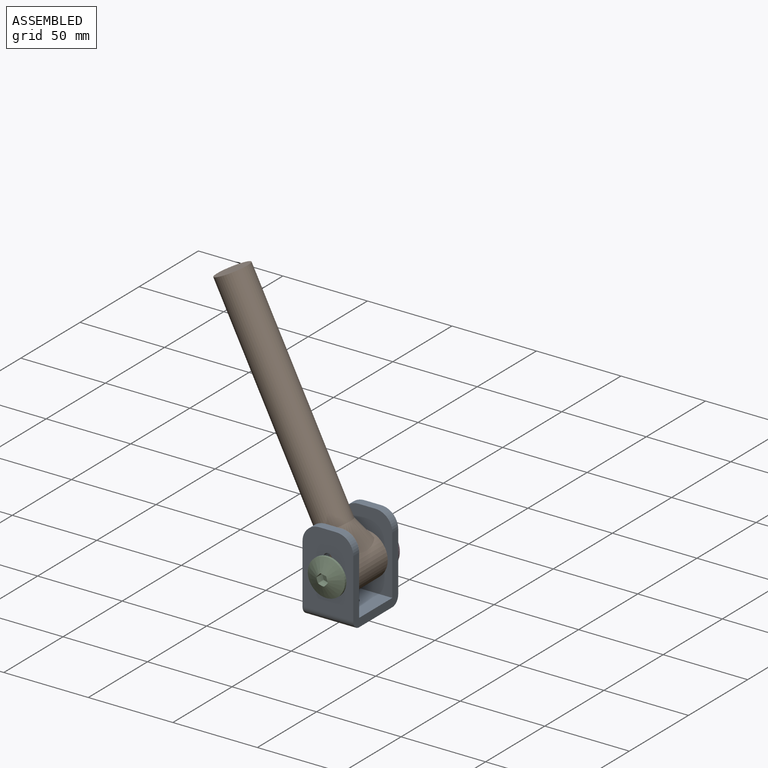
[diagram: assembled view]
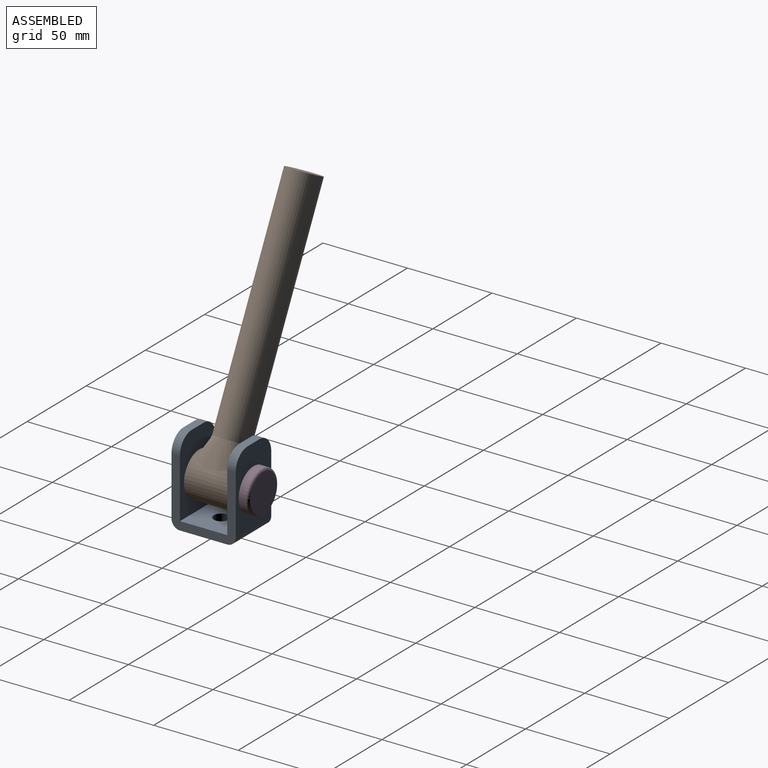
[diagram: assembled view, second angle]
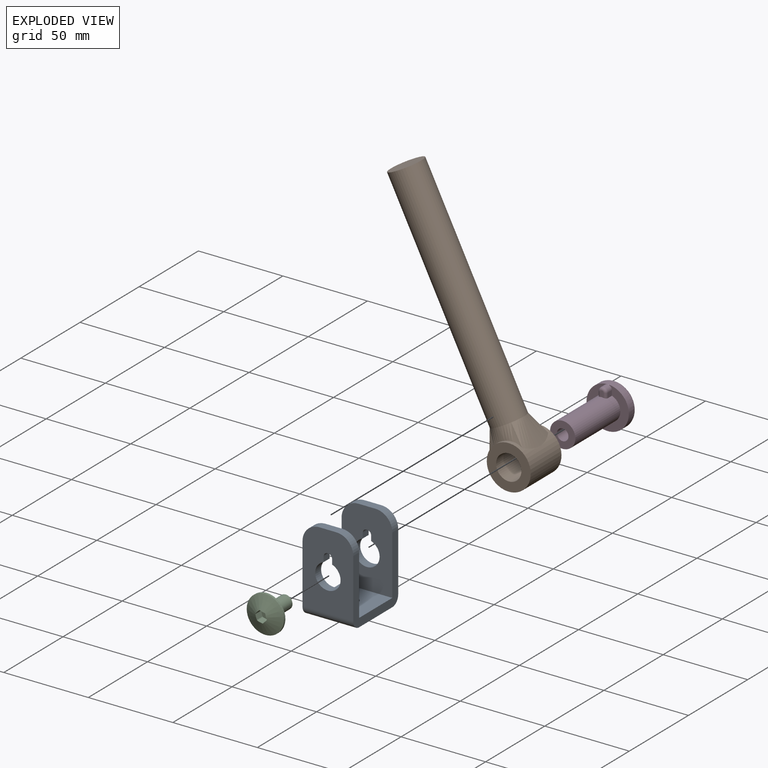
[diagram: exploded view]
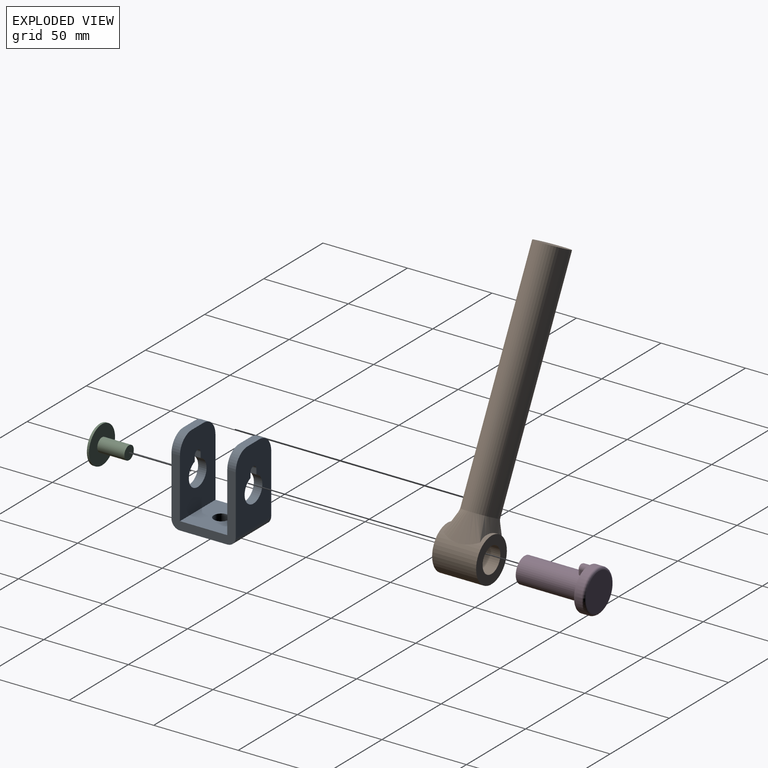
[diagram: exploded view, second angle]
ASSEMBLY  parts=4 mates=3
PART A: 25 faces, bbox 30x38x50 mm
  f0: plane 45x30mm, normal (0,1,0), area 1107.3mm2, adj f4,f5,f6,f12,f13,f15,f20,f21
  f1: plane 45x30mm, normal (0,-1,0), area 1107.3mm2, adj f4,f5,f6,f9,f12,f13,f20,f21
  f2: plane 45x30mm, normal (0,1,0), area 1107.3mm2, adj f4,f5,f8,f9,f10,f11,f16,f17
  f3: plane 45x30mm, normal (0,-1,0), area 1107.3mm2, adj f4,f5,f8,f10,f11,f14,f16,f17
  f4: plane 40x38mm, normal (-1,0,0), area 529.3mm2, adj f0,f1,f2,f3,f7,f9,f10,f12
  f5: plane 40x38mm, normal (1,0,0), area 529.3mm2, adj f0,f1,f2,f3,f7,f9,f11,f13
  f6: plane 10x5mm, normal (0,0,1), area 50mm2, adj f0,f1,f12,f13
  f7: plane 30x28mm, normal (0,0,-1), area 776.4mm2, adj f4,f5,f14,f15,f24
  f8: plane 10x5mm, normal (0,0,1), area 50mm2, adj f2,f3,f10,f11
  f9: plane 30x28mm, normal (0,0,1), area 776.4mm2, adj f1,f2,f4,f5,f24
  f10: cylinder r=10mm len=10mm, axis (0,1,0), area 78.5mm2, adj f2,f3,f4,f8
  f11: cylinder r=10mm len=10mm, axis (0,-1,0), area 78.5mm2, adj f2,f3,f5,f8
  f12: cylinder r=10mm len=10mm, axis (0,1,0), area 78.5mm2, adj f0,f1,f4,f6
  f13: cylinder r=10mm len=10mm, axis (0,-1,0), area 78.5mm2, adj f0,f1,f5,f6
  f14: cylinder r=5mm len=30mm, axis (1,0,0), area 235.6mm2, adj f3,f4,f5,f7
  f15: cylinder r=5mm len=30mm, axis (-1,0,0), area 235.6mm2, adj f0,f4,f5,f7
  f16: plane 5x2.93mm, normal (-1,0,0), area 14.6mm2, adj f2,f3,f17,f19
  f17: cylinder r=7.5mm len=15mm, axis (0,-1,0), area 210.1mm2, adj f2,f3,f16,f18
  f18: plane 5x2.93mm, normal (1,0,0), area 14.6mm2, adj f2,f3,f17,f19
  f19: cylinder r=2.5mm len=5mm, axis (0,-1,0), area 39.3mm2, adj f2,f3,f16,f18
  f20: cylinder r=2.5mm len=5mm, axis (0,-1,0), area 39.3mm2, adj f0,f1,f21,f23
  f21: plane 5x2.93mm, normal (1,0,0), area 14.6mm2, adj f0,f1,f20,f22
  f22: cylinder r=7.5mm len=15mm, axis (0,-1,0), area 210.1mm2, adj f0,f1,f21,f23
  f23: plane 5x2.93mm, normal (-1,0,0), area 14.6mm2, adj f0,f1,f20,f22
  f24: cylinder r=4.5mm len=9mm, axis (0,0,-1), area 141.4mm2, adj f7,f9
PART B: 10 faces, bbox 168x26x26 mm
  f0: cylinder r=7.5mm len=26mm, axis (0,1,0), area 1225.2mm2, adj f2,f3
  f1: cylinder r=13mm len=26mm, axis (0,1,0), area 1452.2mm2, adj f2,f3,f6,f7,f8,f9
  f2: plane 26x26mm, normal (0,-1,0), area 354.2mm2, adj f0,f1
  f3: plane 26x26mm, normal (0,1,0), area 354.2mm2, adj f0,f1
  f4: plane 20x20mm, normal (1,0,0), area 314.2mm2, adj f5
  f5: cylinder r=10mm len=135mm, axis (-1,0,0), area 8482.3mm2, adj f4,f6,f7,f8,f9
  f6: bspline ~21.8x12.92mm, area 154.1mm2, adj f1,f5,f8,f9
  f7: bspline ~26x20mm, area 154.1mm2, adj f1,f5,f8,f9
  f8: bspline ~23.74x16.19mm, area 296.7mm2, adj f1,f5,f6,f7
  f9: bspline ~23.74x16.19mm, area 296.7mm2, adj f1,f5,f6,f7
PART C: 18 faces, bbox 22.2x21.2x22.2 mm
  f0: plane 4.98x2.6mm, normal (-0.87,0,0.5), area 14.8mm2, adj f1,f12,f14,f17
  f1: cylinder r=3.4mm len=4.81mm, axis (0,1,0), area 2.2mm2, adj f0,f2,f14,f17
  f2: plane 5.18x3.21mm, normal (0,0,1), area 14.8mm2, adj f1,f3,f14,f17
  f3: cylinder r=3.4mm len=4.81mm, axis (0,1,0), area 2.2mm2, adj f2,f4,f14,f17
  f4: plane 4.98x2.6mm, normal (0.87,0,0.5), area 14.8mm2, adj f3,f5,f14,f17
  f5: cylinder r=3.4mm len=4.81mm, axis (0,1,0), area 2.2mm2, adj f4,f6,f14,f17
  f6: plane 4.98x2.6mm, normal (0.87,0,-0.5), area 14.8mm2, adj f5,f7,f14,f17
  f7: cylinder r=3.4mm len=4.81mm, axis (0,1,0), area 2.2mm2, adj f6,f8,f14,f17
  f8: plane 4.98x3.01mm, normal (0,0,-1), area 14.8mm2, adj f7,f9,f14,f17
  f9: cylinder r=3.4mm len=4.81mm, axis (0,1,0), area 2.2mm2, adj f8,f10,f14,f17
  f10: plane 4.98x2.6mm, normal (-0.87,0,-0.5), area 14.8mm2, adj f9,f12,f14,f17
  f11: cylinder r=11mm len=22mm, axis (0,1,0), area 87.7mm2, adj f13,f14
  f12: cylinder r=3.4mm len=4.81mm, axis (0,1,0), area 2.2mm2, adj f0,f10,f14,f17
  f13: plane 22x22mm, normal (0,1,0), area 329.9mm2, adj f11,f16
  f14: cone r=3mm half-angle=65deg, axis (0,1,0), area 383.8mm2, adj f0,f1,f2,f3,f4,f5,f6,f7
  f15: plane 8x8mm, normal (0,1,0), area 50.3mm2, adj f16
  f16: cylinder r=4mm len=16mm, axis (0,-1,0), area 402.1mm2, adj f13,f15
  f17: plane 6.8x6.1mm, normal (0,-1,0), area 32.1mm2, adj f0,f1,f2,f3,f4,f5,f6,f7
PART D: 15 faces, bbox 27.1x44x27.1 mm
  f0: plane 22x22mm, normal (0,1,0), area 380.1mm2, adj f1
  f1: torus R=11mm, axis (0,1,0), area 177mm2, adj f0
  f2: cylinder r=7.5mm len=38mm, axis (0,1,0), area 1766.2mm2, adj f3,f6,f7,f8,f10,f11,f12
  f3: plane 3.57x2mm, normal (0,-1,0), area 6.6mm2, adj f2,f4,f6,f11
  f4: torus R=1mm, axis (0,1,0), area 14.5mm2, adj f3,f5,f6,f11
  f5: cylinder r=2.5mm len=5mm, axis (0,1,0), area 27.5mm2, adj f4,f7,f8,f10
  f6: cylinder r=1.5mm len=2.93mm, axis (0,0,1), area 6.5mm2, adj f2,f3,f4,f7
  f7: plane 3.5x2.93mm, normal (1,0,0), area 10.3mm2, adj f2,f5,f6,f8
  f8: plane 25x25mm, normal (0,-1,0), area 291.1mm2, adj f2,f5,f7,f9,f10
  f9: cylinder r=12.5mm len=25mm, axis (0,-1,0), area 353.4mm2, adj f8
  f10: plane 3.5x2.93mm, normal (-1,0,0), area 10.3mm2, adj f2,f5,f8,f11
  f11: cylinder r=1.5mm len=2.93mm, axis (0,0,-1), area 6.5mm2, adj f2,f3,f4,f10
  f12: plane 15x15mm, normal (0,-1,0), area 140.4mm2, adj f2,f13
  f13: cylinder r=3.4mm len=25mm, axis (0,-1,0), area 534.1mm2, adj f12,f14
  f14: cone r=0mm half-angle=59deg, axis (0,-1,0), area 42.4mm2, adj f13
PLACE A t=(0,0,-5)mm
PLACE B rot(axis=(-0.52,0,-0.85),180deg) t=(-22.32,0,8.75)mm
PLACE C rot(axis=(0,1,0),73.1deg) t=(-23.92,0,12.73)mm
PLACE D t=(0,0,-5)mm
MATE revolute D.f2 <-> C.f16  axis (0,-1,0) through (0,-19,20)mm
MATE fastened A.f19 <-> D.f4  axis (0,1,0) through (0,19,30)mm
MATE revolute B.f1 <-> A.f17  axis (0,-1,0) through (0,-13,20)mm
